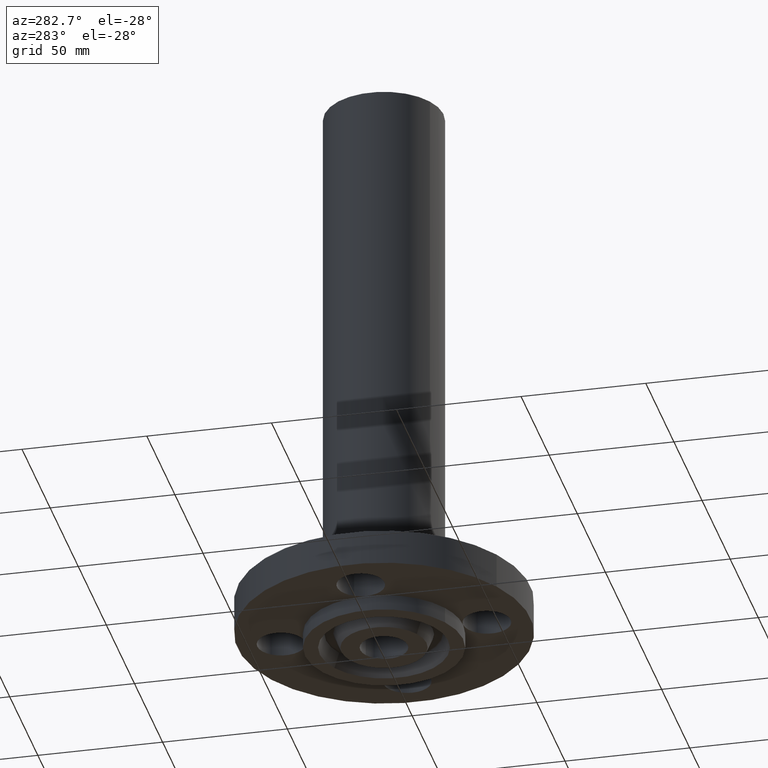
[diagram: clean part render]
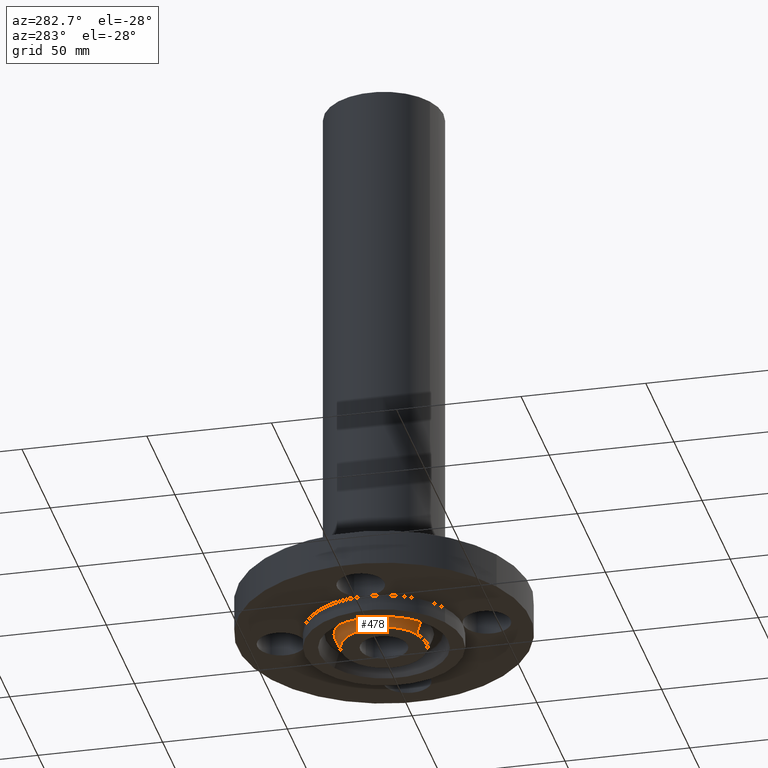
[diagram: same view with one face highlighted and labeled with its STEP entity id]
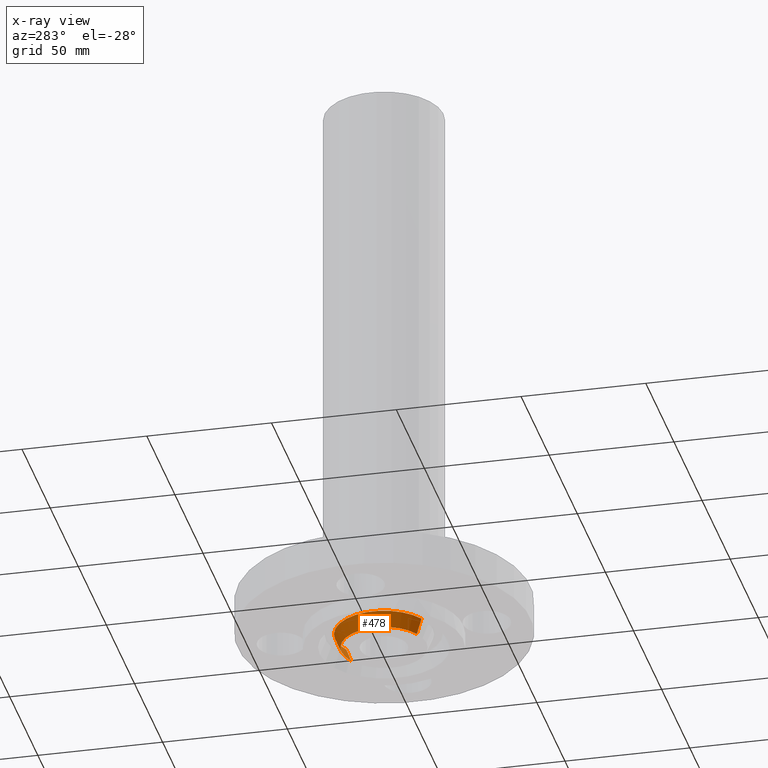
[diagram: x-ray of the same camera — body ghosted, the highlighted face saturated]
A machine part, auxiliary view. The second image highlights one B-rep face of the part: STEP entity #478.
The next image is the same camera in x-ray: the body ghosted, the highlighted face saturated — about 0% of this face is hidden behind the body in this view.
In plain terms, the highlighted conical surface has half-angle 23 deg.
Its self-contained STEP definition (entity closure, byte-faithful):
#427=AXIS2_PLACEMENT_3D('Circle Axis2P3D',#425,#426,$) ;
#451=AXIS2_PLACEMENT_3D('Cone Axis2P3D',#448,#449,#450) ;
#462=AXIS2_PLACEMENT_3D('Circle Axis2P3D',#460,#461,$) ;
#425=CARTESIAN_POINT('Axis2P3D Location',(0.,0.,-0.250000000001)) ;
#429=CARTESIAN_POINT('Vertex',(-0.322173961943,-0.589735481593,-0.250000000001)) ;
#431=CARTESIAN_POINT('Vertex',(0.322173961943,0.589735481593,-0.250000000001)) ;
#448=CARTESIAN_POINT('Axis2P3D Location',(0.,0.,-0.250000000001)) ;
#453=CARTESIAN_POINT('Line Origine',(-0.345690145618,-0.63278156707,-0.134443667509)) ;
#457=CARTESIAN_POINT('Vertex',(-0.369206329292,-0.675827652547,-0.0188873350169)) ;
#460=CARTESIAN_POINT('Axis2P3D Location',(0.,0.,-0.0188873350169)) ;
#464=CARTESIAN_POINT('Vertex',(0.369206329292,0.675827652547,-0.0188873350169)) ;
#467=CARTESIAN_POINT('Line Origine',(0.345690145618,0.63278156707,-0.134443667509)) ;
#426=DIRECTION('Axis2P3D Direction',(0.,0.,-0.0393700787402)) ;
#449=DIRECTION('Axis2P3D Direction',(-0.,-0.,0.0393700787402)) ;
#450=DIRECTION('Axis2P3D XDirection',(-0.0188750212049,-0.0345504945626,0.)) ;
#454=DIRECTION('Vector Direction',(-0.00737505833565,-0.0134999537303,0.0362403485611)) ;
#461=DIRECTION('Axis2P3D Direction',(-0.,0.,0.0393700787402)) ;
#468=DIRECTION('Vector Direction',(0.00737505833565,0.0134999537303,0.0362403485611)) ;
#455=VECTOR('Line Direction',#454,0.0393700787402) ;
#469=VECTOR('Line Direction',#468,0.0393700787402) ;
#473=ORIENTED_EDGE('',*,*,#433,.F.) ;
#474=ORIENTED_EDGE('',*,*,#459,.T.) ;
#475=ORIENTED_EDGE('',*,*,#466,.T.) ;
#476=ORIENTED_EDGE('',*,*,#471,.F.) ;
#478=ADVANCED_FACE('PartBody',(#477),#452,.T.) ;
#428=CIRCLE('generated circle',#427,0.672000000003) ;
#463=CIRCLE('generated circle',#462,0.770101505996) ;
#452=CONICAL_SURFACE('Cone',#451,0.672000000003,0.401425727959) ;
#433=EDGE_CURVE('',#430,#432,#428,.T.) ;
#459=EDGE_CURVE('',#430,#458,#456,.T.) ;
#466=EDGE_CURVE('',#458,#465,#463,.F.) ;
#471=EDGE_CURVE('',#432,#465,#470,.T.) ;
#472=EDGE_LOOP('',(#473,#474,#475,#476)) ;
#477=FACE_OUTER_BOUND('',#472,.T.) ;
#456=LINE('Line',#453,#455) ;
#470=LINE('Line',#467,#469) ;
#430=VERTEX_POINT('',#429) ;
#432=VERTEX_POINT('',#431) ;
#458=VERTEX_POINT('',#457) ;
#465=VERTEX_POINT('',#464) ;